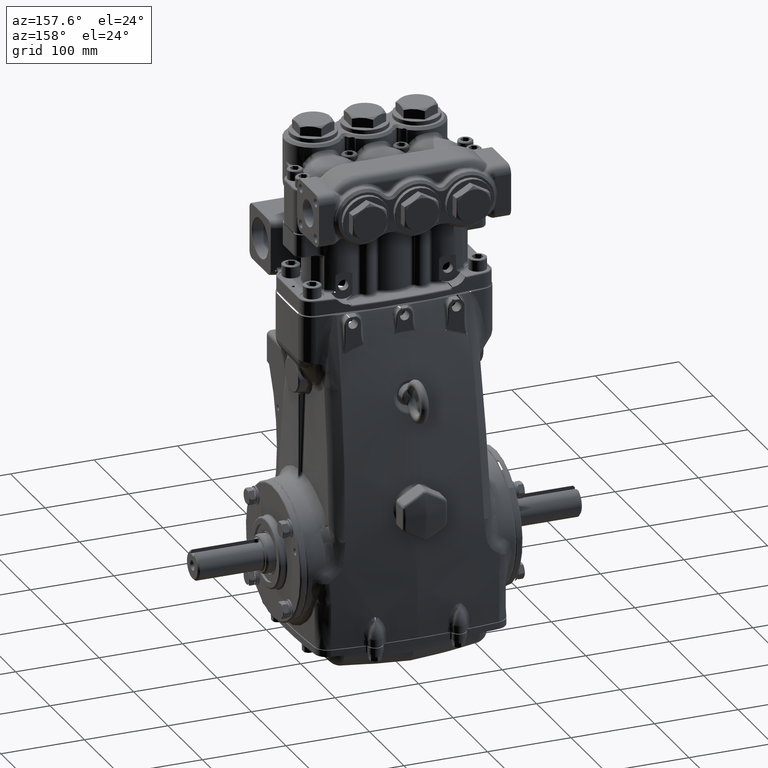
[diagram: clean part render]
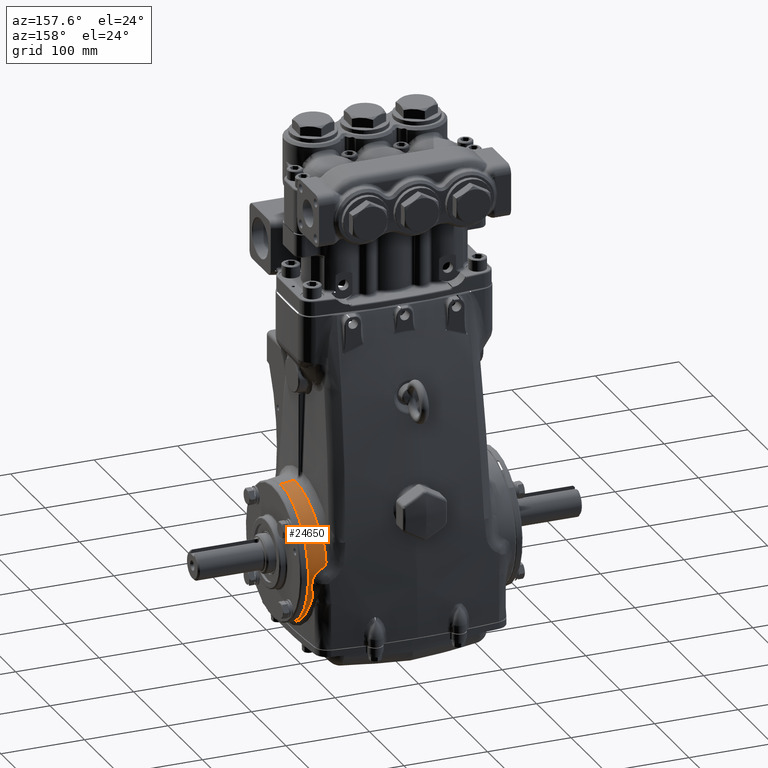
[diagram: same view with one face highlighted and labeled with its STEP entity id]
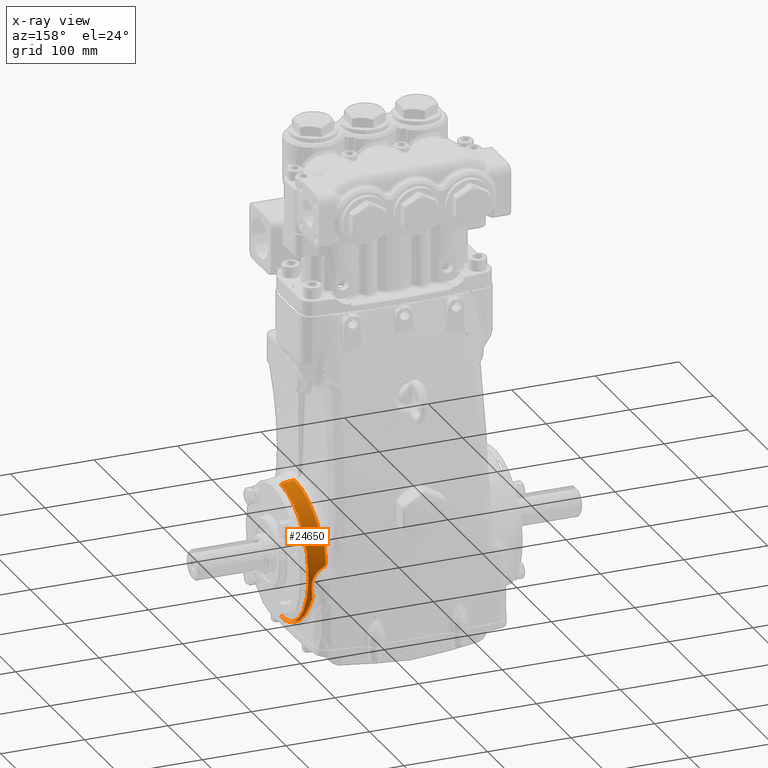
[diagram: x-ray of the same camera — body ghosted, the highlighted face saturated]
A machine part, auxiliary view. The second image highlights one B-rep face of the part: STEP entity #24650.
The next image is the same camera in x-ray: the body ghosted, the highlighted face saturated — about 0% of this face is hidden behind the body in this view.
In plain terms, the highlighted toroidal blend (fillet) surface has major radius 710.174 mm and minor (blend) radius 800 mm.
Its self-contained STEP definition (entity closure, byte-faithful):
#248 = VERTEX_POINT ( 'NONE', #64532 ) ;
#1276 = AXIS2_PLACEMENT_3D ( 'NONE', #115684, #20749, #63034 ) ;
#1695 = VERTEX_POINT ( 'NONE', #86728 ) ;
#1754 = B_SPLINE_CURVE_WITH_KNOTS ( 'NONE', 3,
 ( #124831, #29911, #72170, #114427, #19503, #61783, #104030, #9097, #51376, #93638, #135920, #40984, #83268, #125524, #30602, #72847, #115112, #20184 ),
 .UNSPECIFIED., .F., .F.,
 ( 4, 2, 2, 2, 2, 2, 2, 2, 4 ),
 ( 0.0000000000000000000, 0.06249999999999997224, 0.1249999999999997780, 0.2499999999999997224, 0.3124999999999997224, 0.3749999999999997224, 0.4374999999999996669, 0.4999999999999996114, 0.5000483756456942652 ),
 .UNSPECIFIED. ) ;
#3186 = CARTESIAN_POINT ( 'NONE',  ( 4.691864285209378593, 3.182784880507448122, -0.1369267905635789540 ) ) ;
#3486 = AXIS2_PLACEMENT_3D ( 'NONE', #93451, #135724, #40787 ) ;
#4150 = CARTESIAN_POINT ( 'NONE',  ( 4.078675912188307606, 3.177036170810310534, 0.7902329301779383863 ) ) ;
#4637 = CARTESIAN_POINT ( 'NONE',  ( 4.154194953984836403, 2.605897780206630987, 1.960951467905414525 ) ) ;
#7700 = CARTESIAN_POINT ( 'NONE',  ( 4.073807283106575028, 2.959955667553678893, 1.394234154907067369 ) ) ;
#9019 = CARTESIAN_POINT ( 'NONE',  ( 4.238246544434335128, 0.5038947502049859750, 3.220544766620665023 ) ) ;
#9097 = CARTESIAN_POINT ( 'NONE',  ( 4.771868580478986210, 1.520318669897275932, -2.788654367112044064 ) ) ;
#9547 = EDGE_CURVE ( 'NONE', #135514, #24278, #83505, .T. ) ;
#9706 = CARTESIAN_POINT ( 'NONE',  ( 4.068200303526625206, 3.204746600826735126, 0.6630299790286307005 ) ) ;
#9953 = CARTESIAN_POINT ( 'NONE',  ( 4.874534027504088485, 0.0000000000000000000, 4.945856143601376801E-16 ) ) ;
#13344 = ORIENTED_EDGE ( 'NONE', *, *, #111195, .F. ) ;
#13610 = CARTESIAN_POINT ( 'NONE',  ( 4.525957743663932220, 3.205360193209796371, 0.1746429511238108412 ) ) ;
#13992 = AXIS2_PLACEMENT_3D ( 'NONE', #9953, #52249, #94524 ) ;
#14577 = CARTESIAN_POINT ( 'NONE',  ( 4.061462586543210129, 3.062019225959972335, 1.159266442991663260 ) ) ;
#17175 = CARTESIAN_POINT ( 'NONE',  ( -1.050220729719372817E-16, 0.0000000000000000000, 27.95960753795100473 ) ) ;
#18105 = CARTESIAN_POINT ( 'NONE',  ( 4.154194953984836403, 2.605897780206630987, 1.960951467905414525 ) ) ;
#19440 = CARTESIAN_POINT ( 'NONE',  ( 4.240991284168796227, 0.0003446796147279267359, 3.249621496000394849 ) ) ;
#19503 = CARTESIAN_POINT ( 'NONE',  ( 4.709612994223759230, 2.413457867911871890, -2.079216001386112733 ) ) ;
#20113 = CARTESIAN_POINT ( 'NONE',  ( 4.162540895535916441, 2.454896721900498680, 2.159769071337958035 ) ) ;
#20184 = CARTESIAN_POINT ( 'NONE',  ( 4.812441923013113687, -1.481110120753864741E-07, -3.166625558008697272 ) ) ;
#20437 = VERTEX_POINT ( 'NONE', #4637 ) ;
#20749 = DIRECTION ( 'NONE',  ( 1.242565312115808949E-32, -1.000000000000000000, -1.224646799147353207E-16 ) ) ;
#20861 = VERTEX_POINT ( 'NONE', #52427 ) ;
#23741 = AXIS2_PLACEMENT_3D ( 'NONE', #17175, #59448, #101686 ) ;
#24005 = CARTESIAN_POINT ( 'NONE',  ( 4.306442720080875475, 3.220941856846597062, 0.3588947067686674153 ) ) ;
#24278 = VERTEX_POINT ( 'NONE', #129919 ) ;
#24650 = ADVANCED_FACE ( 'NONE', ( #103836 ), #123003, .T. ) ;
#24967 = CARTESIAN_POINT ( 'NONE',  ( 4.073807283106575028, 2.959955667553678893, 1.394234154907067369 ) ) ;
#29295 = CARTESIAN_POINT ( 'NONE',  ( 4.637802544244244984, 2.974521444932946235, -1.161151241241906051 ) ) ;
#29911 = CARTESIAN_POINT ( 'NONE',  ( 4.678730987551996456, 2.750134642329449264, -1.616790438325639290 ) ) ;
#30538 = CARTESIAN_POINT ( 'NONE',  ( 4.192696857515964659, 1.890014639482608727, 2.654440234251027153 ) ) ;
#30602 = CARTESIAN_POINT ( 'NONE',  ( 4.812440237346388372, 0.1436301529543733135, -3.166610750456125167 ) ) ;
#31233 = CARTESIAN_POINT ( 'NONE',  ( 4.241298004304445257, 3.226000655407923912, 0.3907540742130110600 ) ) ;
#34404 = EDGE_CURVE ( 'NONE', #66263, #20437, #116429, .T. ) ;
#35451 = CARTESIAN_POINT ( 'NONE',  ( 4.653921817566643249, 2.927634284835795242, -1.274662930402815864 ) ) ;
#35878 = VERTEX_POINT ( 'NONE', #89523 ) ;
#37912 = B_SPLINE_CURVE_WITH_KNOTS ( 'NONE', 3,
 ( #118943, #24005, #66269, #108526, #13610, #55882, #98139, #3186, #45488, #87768 ),
 .UNSPECIFIED., .F., .F.,
 ( 4, 2, 2, 2, 4 ),
 ( 0.0000000000000000000, 0.2500000000000000555, 0.5000000000000001110, 0.7500000000000001110, 1.000000000000000000 ),
 .UNSPECIFIED. ) ;
#39378 = CARTESIAN_POINT ( 'NONE',  ( 4.068200303526625206, 3.204746600826735126, 0.6630299790286307005 ) ) ;
#39694 = CARTESIAN_POINT ( 'NONE',  ( 4.658975787018183823, 3.069568083386453150, -0.8714618007107672870 ) ) ;
#40787 = DIRECTION ( 'NONE',  ( 1.014631576207059362E-16, 0.0000000000000000000, -1.000000000000000000 ) ) ;
#40916 = CARTESIAN_POINT ( 'NONE',  ( 4.216037610086960541, 1.346905371742586288, 2.963697749650650692 ) ) ;
#40984 = CARTESIAN_POINT ( 'NONE',  ( 4.803729563884371778, 0.7157950481554029576, -3.089385478695436227 ) ) ;
#41614 = CARTESIAN_POINT ( 'NONE',  ( 4.095984984556026554, 3.226690210512230372, 0.5247030092267949142 ) ) ;
#45488 = CARTESIAN_POINT ( 'NONE',  ( 4.707437444170594176, 3.176837014911261470, -0.2054882541368508730 ) ) ;
#45501 = ORIENTED_EDGE ( 'NONE', *, *, #110602, .F. ) ;
#46460 = CARTESIAN_POINT ( 'NONE',  ( 4.068200303526625206, 3.204746600826735126, 0.6630299790286307005 ) ) ;
#47719 = CARTESIAN_POINT ( 'NONE',  ( 4.874534027504089373, 0.0000000000000000000, -3.156962035488048102 ) ) ;
#50079 = CARTESIAN_POINT ( 'NONE',  ( 4.726115579893149565, 3.154683699914412109, -0.4270495393017662566 ) ) ;
#51308 = CARTESIAN_POINT ( 'NONE',  ( 4.230570228217087170, 0.8715250937236261874, 3.134568039433681896 ) ) ;
#51376 = CARTESIAN_POINT ( 'NONE',  ( 4.778544369821450921, 1.391293148218106124, -2.854018202544395422 ) ) ;
#52006 = CARTESIAN_POINT ( 'NONE',  ( 4.065847519240106678, 3.210970264318001366, 0.6344606510951635858 ) ) ;
#52249 = DIRECTION ( 'NONE',  ( 1.000000000000000000, -0.0000000000000000000, 1.014631576207051350E-16 ) ) ;
#52427 = CARTESIAN_POINT ( 'NONE',  ( 4.671994797260747845, 2.817599287592787771, -1.491502570683553408 ) ) ;
#53227 = EDGE_CURVE ( 'NONE', #20437, #35878, #119900, .T. ) ;
#55882 = CARTESIAN_POINT ( 'NONE',  ( 4.608454662657810452, 3.197477234438216076, 0.05922730637586204328 ) ) ;
#56358 = ORIENTED_EDGE ( 'NONE', *, *, #53227, .F. ) ;
#56852 = CARTESIAN_POINT ( 'NONE',  ( 4.065296791705812929, 3.083695624499757759, 1.098836348129753393 ) ) ;
#59149 = B_SPLINE_CURVE_WITH_KNOTS ( 'NONE', 3,
 ( #24967, #67241, #109488, #14577, #56852, #99114, #4150, #46460 ),
 .UNSPECIFIED., .F., .F.,
 ( 4, 2, 2, 4 ),
 ( 0.0000000000000000000, 0.2500000000000000000, 0.5000000000000000000, 1.000000000000000000 ),
 .UNSPECIFIED. ) ;
#59201 = B_SPLINE_CURVE_WITH_KNOTS ( 'NONE', 3,
 ( #9706, #52006, #94283, #136559, #41614, #83894, #126145, #31233 ),
 .UNSPECIFIED., .F., .F.,
 ( 4, 2, 2, 4 ),
 ( 0.0000000000000000000, 0.2500000000000001110, 0.5000000000000000000, 1.000000000000000000 ),
 .UNSPECIFIED. ) ;
#59448 = DIRECTION ( 'NONE',  ( 0.0000000000000000000, 1.000000000000000000, 0.0000000000000000000 ) ) ;
#59543 = ORIENTED_EDGE ( 'NONE', *, *, #98060, .F. ) ;
#59865 = VERTEX_POINT ( 'NONE', #92891 ) ;
#60380 = CARTESIAN_POINT ( 'NONE',  ( 4.146721318106727061, 2.741116428545983474, 1.782913989852564551 ) ) ;
#61085 = CIRCLE ( 'NONE', #1276, 31.49606299212598515 ) ;
#61714 = CARTESIAN_POINT ( 'NONE',  ( 4.240991279222060761, 0.0006893554281313887420, 3.249621442441374075 ) ) ;
#61783 = CARTESIAN_POINT ( 'NONE',  ( 4.734012498875753927, 2.115629129916916096, -2.389601212258142038 ) ) ;
#62398 = CARTESIAN_POINT ( 'NONE',  ( 4.154194953984836403, 2.605897780206630987, 1.960951467905414525 ) ) ;
#63034 = DIRECTION ( 'NONE',  ( 0.0000000000000000000, 1.224646799147353454E-16, -1.000000000000000000 ) ) ;
#64532 = CARTESIAN_POINT ( 'NONE',  ( 4.874534027504088485, -3.866163451790151959E-16, 3.156962035488049434 ) ) ;
#66263 = VERTEX_POINT ( 'NONE', #118552 ) ;
#66269 = CARTESIAN_POINT ( 'NONE',  ( 4.366517209377190234, 3.216802702787199042, 0.3199649858400177016 ) ) ;
#67241 = CARTESIAN_POINT ( 'NONE',  ( 4.062171831924460186, 2.988581907723210307, 1.337022383730508857 ) ) ;
#72170 = CARTESIAN_POINT ( 'NONE',  ( 4.686048244197675849, 2.674449704131818262, -1.737148116436805445 ) ) ;
#72782 = CARTESIAN_POINT ( 'NONE',  ( 4.187568360713703086, 1.992418179094195496, 2.579343335724618935 ) ) ;
#72847 = CARTESIAN_POINT ( 'NONE',  ( 4.812441922369765201, 0.0002216796829749771811, -3.166625552252321452 ) ) ;
#73582 = CARTESIAN_POINT ( 'NONE',  ( 4.241298004304445257, 3.226000655407923912, 0.3907540742130110600 ) ) ;
#73727 = CIRCLE ( 'NONE', #13992, 3.156962035488045437 ) ;
#74589 = VERTEX_POINT ( 'NONE', #39378 ) ;
#77708 = CARTESIAN_POINT ( 'NONE',  ( 4.666242716680963021, 2.875207825545444074, -1.384518374008109731 ) ) ;
#79806 = ORIENTED_EDGE ( 'NONE', *, *, #81130, .F. ) ;
#81130 = EDGE_CURVE ( 'NONE', #135514, #248, #73727, .T. ) ;
#81976 = CARTESIAN_POINT ( 'NONE',  ( 4.635635187596252038, 3.027823039596698074, -1.017943517383999241 ) ) ;
#83201 = CARTESIAN_POINT ( 'NONE',  ( 4.207234520616640161, 1.570950161894576702, 2.852630950639244212 ) ) ;
#83268 = CARTESIAN_POINT ( 'NONE',  ( 4.807006210958571835, 0.5728613285602678351, -3.118572578576121579 ) ) ;
#83505 = CIRCLE ( 'NONE', #23741, 31.49606299212598515 ) ;
#83664 = ORIENTED_EDGE ( 'NONE', *, *, #34404, .F. ) ;
#83894 = CARTESIAN_POINT ( 'NONE',  ( 4.143782492644183968, 3.231390772531538946, 0.4533618342178409866 ) ) ;
#86728 = CARTESIAN_POINT ( 'NONE',  ( 4.713410149019337858, 3.169753052427448203, -0.2763368758280543847 ) ) ;
#87768 = CARTESIAN_POINT ( 'NONE',  ( 4.713410149019337858, 3.169753052427448203, -0.2763368758280543847 ) ) ;
#89523 = CARTESIAN_POINT ( 'NONE',  ( 4.073807283106575028, 2.959955667553678893, 1.394234154907067369 ) ) ;
#91483 = EDGE_CURVE ( 'NONE', #35878, #74589, #59149, .T. ) ;
#92354 = CARTESIAN_POINT ( 'NONE',  ( 4.712641133815379746, 3.133042328430314161, -0.5756482081369065362 ) ) ;
#92891 = CARTESIAN_POINT ( 'NONE',  ( 4.637802544244244984, 2.974521444932946235, -1.161151241241906051 ) ) ;
#93451 = CARTESIAN_POINT ( 'NONE',  ( 2.731847993664263218E-15, 0.0000000000000000000, 0.0000000000000000000 ) ) ;
#93571 = CARTESIAN_POINT ( 'NONE',  ( 4.227392868544042948, 0.9937620172501010485, 3.098456032417901795 ) ) ;
#93638 = CARTESIAN_POINT ( 'NONE',  ( 4.790275916338069706, 1.127806917377776053, -2.966097371891001533 ) ) ;
#94283 = CARTESIAN_POINT ( 'NONE',  ( 4.068617807406575970, 3.216077081755198908, 0.6060284640306478066 ) ) ;
#94438 = ORIENTED_EDGE ( 'NONE', *, *, #120968, .F. ) ;
#94524 = DIRECTION ( 'NONE',  ( 1.730681562182256507E-16, 0.0000000000000000000, -1.000000000000000000 ) ) ;
#96348 = EDGE_CURVE ( 'NONE', #20861, #24278, #1754, .T. ) ;
#96567 = VERTEX_POINT ( 'NONE', #73582 ) ;
#98060 = EDGE_CURVE ( 'NONE', #74589, #96567, #59201, .T. ) ;
#98139 = CARTESIAN_POINT ( 'NONE',  ( 4.642557607345427328, 3.193112082821952136, -0.004542834851915530242 ) ) ;
#99114 = CARTESIAN_POINT ( 'NONE',  ( 4.075049457166739053, 3.143660174641020433, 0.9154835181011081735 ) ) ;
#101686 = DIRECTION ( 'NONE',  ( 0.0000000000000000000, 0.0000000000000000000, 1.000000000000000000 ) ) ;
#101913 = EDGE_CURVE ( 'NONE', #248, #66263, #61085, .T. ) ;
#102625 = CARTESIAN_POINT ( 'NONE',  ( 4.114028964597911120, 2.860999858714342814, 1.592005047932144146 ) ) ;
#103836 = FACE_OUTER_BOUND ( 'NONE', #110329, .T. ) ;
#103960 = CARTESIAN_POINT ( 'NONE',  ( 4.240983879221125186, 0.2545184672492846190, 3.249541679759034629 ) ) ;
#104030 = CARTESIAN_POINT ( 'NONE',  ( 4.750225946007453182, 1.892487710918328014, -2.567101405656786461 ) ) ;
#106860 = B_SPLINE_CURVE_WITH_KNOTS ( 'NONE', 3,
 ( #113113, #50079, #92354, #134634, #39694, #81976, #124226, #29295 ),
 .UNSPECIFIED., .F., .F.,
 ( 4, 2, 2, 4 ),
 ( 0.0000000000000000000, 0.5000000000000000000, 0.7500000000000005551, 1.000000000000000000 ),
 .UNSPECIFIED. ) ;
#108420 = ORIENTED_EDGE ( 'NONE', *, *, #101913, .F. ) ;
#108526 = CARTESIAN_POINT ( 'NONE',  ( 4.476412931500994397, 3.209011264102048511, 0.2279385735750514286 ) ) ;
#109488 = CARTESIAN_POINT ( 'NONE',  ( 4.059925670154537869, 3.014463449374038539, 1.278350023217473819 ) ) ;
#110329 = EDGE_LOOP ( 'NONE', ( #108420, #79806, #124396, #125782, #45501, #94438, #13344, #59543, #119881, #56358, #83664 ) ) ;
#110602 = EDGE_CURVE ( 'NONE', #59865, #20861, #135598, .T. ) ;
#111195 = EDGE_CURVE ( 'NONE', #96567, #1695, #37912, .T. ) ;
#113113 = CARTESIAN_POINT ( 'NONE',  ( 4.713410149019337858, 3.169753052427448203, -0.2763368758280543847 ) ) ;
#114360 = CARTESIAN_POINT ( 'NONE',  ( 4.240991282790828265, 4.693753063019659436E-11, 3.249621495888693978 ) ) ;
#114427 = CARTESIAN_POINT ( 'NONE',  ( 4.701456738869716823, 2.506518591673402518, -1.967978168017704865 ) ) ;
#115041 = CARTESIAN_POINT ( 'NONE',  ( 4.172396486719832431, 2.282757929822119003, 2.339296565482489765 ) ) ;
#115112 = CARTESIAN_POINT ( 'NONE',  ( 4.812441923021014034, 0.0001107658211530116772, -3.166625557999726226 ) ) ;
#115684 = CARTESIAN_POINT ( 'NONE',  ( 5.568718060300463558E-15, 3.424064387676790698E-15, -27.95960753795100473 ) ) ;
#116429 = B_SPLINE_CURVE_WITH_KNOTS ( 'NONE', 3,
 ( #114360, #19440, #61714, #103960, #9019, #51308, #93571, #135850, #40916, #83201, #125457, #30538, #72782, #115041, #20113, #62398 ),
 .UNSPECIFIED., .F., .F.,
 ( 4, 2, 2, 2, 2, 2, 2, 4 ),
 ( 0.4998300329576842449, 0.5000000000000005551, 0.6250000000000004441, 0.6875000000000004441, 0.7500000000000002220, 0.8125000000000002220, 0.8750000000000000000, 1.000000000000000000 ),
 .UNSPECIFIED. ) ;
#118552 = CARTESIAN_POINT ( 'NONE',  ( 4.240991282790828265, 4.693753063019659436E-11, 3.249621495888693978 ) ) ;
#118943 = CARTESIAN_POINT ( 'NONE',  ( 4.241298004304445257, 3.226000655407923912, 0.3907540742130110600 ) ) ;
#119881 = ORIENTED_EDGE ( 'NONE', *, *, #91483, .F. ) ;
#119900 = B_SPLINE_CURVE_WITH_KNOTS ( 'NONE', 3,
 ( #18105, #60380, #102625, #7700 ),
 .UNSPECIFIED., .F., .F.,
 ( 4, 4 ),
 ( 0.0000000000000000000, 1.000000000000000000 ),
 .UNSPECIFIED. ) ;
#119960 = CARTESIAN_POINT ( 'NONE',  ( 4.671994797260747845, 2.817599287592787771, -1.491502570683553408 ) ) ;
#120968 = EDGE_CURVE ( 'NONE', #1695, #59865, #106860, .T. ) ;
#123003 = TOROIDAL_SURFACE ( 'NONE', #3486, -27.95960753795100473, 31.49606299212598515 ) ;
#124226 = CARTESIAN_POINT ( 'NONE',  ( 4.627787410407205648, 3.003653105460652117, -1.090624811537968197 ) ) ;
#124396 = ORIENTED_EDGE ( 'NONE', *, *, #9547, .T. ) ;
#124831 = CARTESIAN_POINT ( 'NONE',  ( 4.671994797260747845, 2.817599287592787771, -1.491502570683553408 ) ) ;
#125457 = CARTESIAN_POINT ( 'NONE',  ( 4.202512996924321342, 1.679589324815265350, 2.790805159271849689 ) ) ;
#125524 = CARTESIAN_POINT ( 'NONE',  ( 4.811350262039489678, 0.2868101711927856234, -3.157079915587289953 ) ) ;
#125782 = ORIENTED_EDGE ( 'NONE', *, *, #96348, .F. ) ;
#126145 = CARTESIAN_POINT ( 'NONE',  ( 4.190438448393496884, 3.229950143034148180, 0.4156272086729994042 ) ) ;
#129919 = CARTESIAN_POINT ( 'NONE',  ( 4.812441923013113687, -1.481110120753864741E-07, -3.166625558008697272 ) ) ;
#130356 = CARTESIAN_POINT ( 'NONE',  ( 4.637802544244244984, 2.974521444932946235, -1.161151241241906051 ) ) ;
#134634 = CARTESIAN_POINT ( 'NONE',  ( 4.674564392022622528, 3.087151649607060566, -0.7976241848603575768 ) ) ;
#135514 = VERTEX_POINT ( 'NONE', #47719 ) ;
#135598 = B_SPLINE_CURVE_WITH_KNOTS ( 'NONE', 3,
 ( #130356, #35451, #77708, #119960 ),
 .UNSPECIFIED., .F., .F.,
 ( 4, 4 ),
 ( 0.0000000000000000000, 1.000000000000000000 ),
 .UNSPECIFIED. ) ;
#135724 = DIRECTION ( 'NONE',  ( -1.000000000000000000, 0.0000000000000000000, -1.014631576207059362E-16 ) ) ;
#135850 = CARTESIAN_POINT ( 'NONE',  ( 4.220119805139074032, 1.231499927907183212, 3.012939108229590435 ) ) ;
#135920 = CARTESIAN_POINT ( 'NONE',  ( 4.795370271893069081, 0.9927087079575377393, -3.013198068457106249 ) ) ;
#136559 = CARTESIAN_POINT ( 'NONE',  ( 4.083558810797971006, 3.223928057735546027, 0.5513174960341431508 ) ) ;